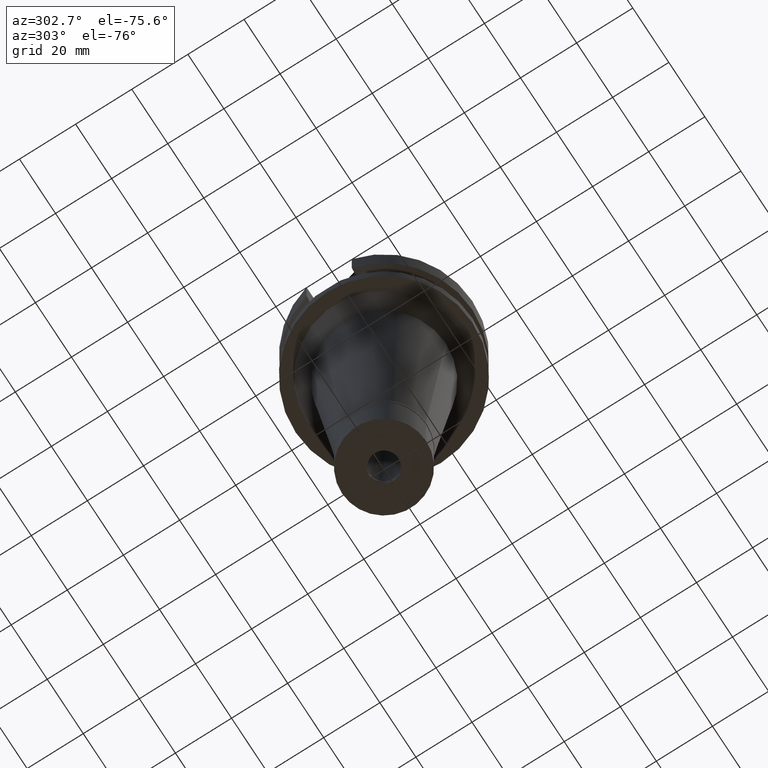
[diagram: clean part render]
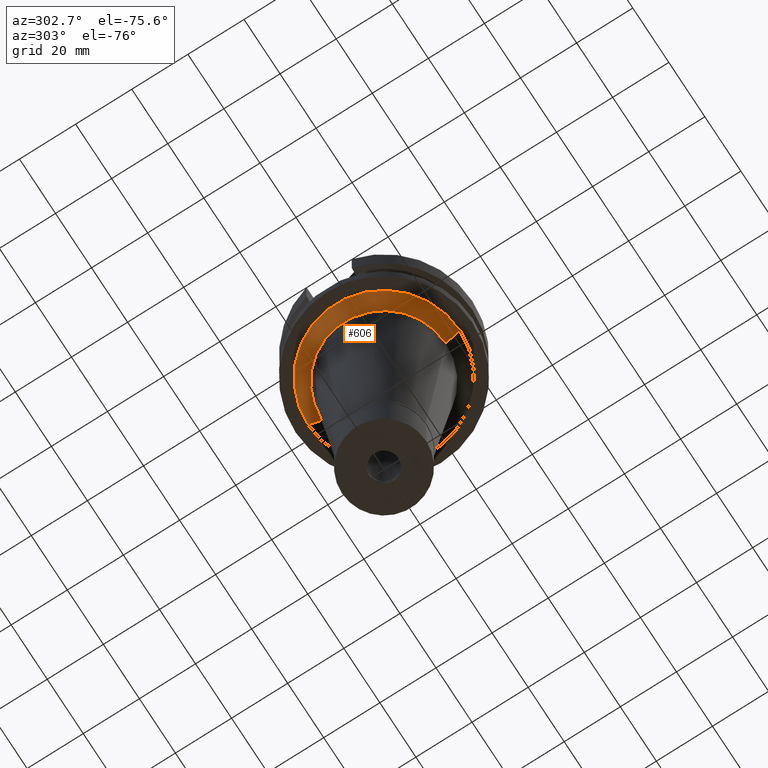
[diagram: same view with one face highlighted and labeled with its STEP entity id]
A machine part, auxiliary view. The second image highlights one B-rep face of the part: STEP entity #606.
In plain terms, the highlighted conical surface has half-angle 45 deg.
Its self-contained STEP definition (entity closure, byte-faithful):
#24 = CONICAL_SURFACE ( 'NONE', #190, 24.51659081478000246, 0.7853981633972997312 ) ;
#86 = EDGE_CURVE ( 'NONE', #2668, #2775, #1071, .T. ) ;
#102 = CARTESIAN_POINT ( 'NONE',  ( 0.0000000000000000000, 0.0000000000000000000, -27.00000000000000000 ) ) ;
#151 = DIRECTION ( 'NONE',  ( 0.0000000000000000000, 0.0000000000000000000, -1.000000000000000000 ) ) ;
#190 = AXIS2_PLACEMENT_3D ( 'NONE', #991, #1967, #2451 ) ;
#250 = CARTESIAN_POINT ( 'NONE',  ( 0.0000000000000000000, -22.01659081477999891, -32.00000000000000000 ) ) ;
#391 = CARTESIAN_POINT ( 'NONE',  ( 0.0000000000000000000, 27.01659081477999891, -27.00000000000000000 ) ) ;
#421 = CARTESIAN_POINT ( 'NONE',  ( 0.0000000000000000000, -27.01659081477999891, -27.00000000000000000 ) ) ;
#539 = FACE_OUTER_BOUND ( 'NONE', #2637, .T. ) ;
#549 = VECTOR ( 'NONE', #2961, 1000.000000000000000 ) ;
#592 = VECTOR ( 'NONE', #3002, 1000.000000000000000 ) ;
#606 = ADVANCED_FACE ( 'NONE', ( #539 ), #24, .T. ) ;
#644 = DIRECTION ( 'NONE',  ( 0.0000000000000000000, -1.000000000000000000, 0.0000000000000000000 ) ) ;
#743 = CARTESIAN_POINT ( 'NONE',  ( 0.0000000000000000000, 27.01659081477999891, -27.00000000000000000 ) ) ;
#981 = AXIS2_PLACEMENT_3D ( 'NONE', #102, #151, #644 ) ;
#988 = AXIS2_PLACEMENT_3D ( 'NONE', #1132, #2606, #1732 ) ;
#991 = CARTESIAN_POINT ( 'NONE',  ( 0.0000000000000000000, 0.0000000000000000000, -29.50000000000000000 ) ) ;
#1071 = LINE ( 'NONE', #1330, #549 ) ;
#1132 = CARTESIAN_POINT ( 'NONE',  ( 0.0000000000000000000, 0.0000000000000000000, -32.00000000000000000 ) ) ;
#1260 = VERTEX_POINT ( 'NONE', #743 ) ;
#1293 = ORIENTED_EDGE ( 'NONE', *, *, #86, .F. ) ;
#1330 = CARTESIAN_POINT ( 'NONE',  ( 0.0000000000000000000, -27.01659081477999891, -27.00000000000000000 ) ) ;
#1341 = EDGE_CURVE ( 'NONE', #2668, #1260, #2762, .T. ) ;
#1447 = CIRCLE ( 'NONE', #988, 22.01659081477999891 ) ;
#1512 = EDGE_CURVE ( 'NONE', #1260, #2802, #1551, .T. ) ;
#1551 = LINE ( 'NONE', #391, #592 ) ;
#1626 = EDGE_CURVE ( 'NONE', #2775, #2802, #1447, .T. ) ;
#1732 = DIRECTION ( 'NONE',  ( 0.0000000000000000000, -1.000000000000000000, 0.0000000000000000000 ) ) ;
#1967 = DIRECTION ( 'NONE',  ( 0.0000000000000000000, 0.0000000000000000000, 1.000000000000000000 ) ) ;
#2451 = DIRECTION ( 'NONE',  ( 0.0000000000000000000, 1.000000000000000000, 0.0000000000000000000 ) ) ;
#2606 = DIRECTION ( 'NONE',  ( 0.0000000000000000000, 0.0000000000000000000, -1.000000000000000000 ) ) ;
#2637 = EDGE_LOOP ( 'NONE', ( #2746, #1293, #3139, #2808 ) ) ;
#2668 = VERTEX_POINT ( 'NONE', #421 ) ;
#2746 = ORIENTED_EDGE ( 'NONE', *, *, #1626, .F. ) ;
#2762 = CIRCLE ( 'NONE', #981, 27.01659081477999891 ) ;
#2775 = VERTEX_POINT ( 'NONE', #250 ) ;
#2802 = VERTEX_POINT ( 'NONE', #3136 ) ;
#2808 = ORIENTED_EDGE ( 'NONE', *, *, #1512, .T. ) ;
#2961 = DIRECTION ( 'NONE',  ( 0.0000000000000000000, 0.7071067811865969777, -0.7071067811864980568 ) ) ;
#3002 = DIRECTION ( 'NONE',  ( 0.0000000000000000000, -0.7071067811865969777, -0.7071067811864980568 ) ) ;
#3136 = CARTESIAN_POINT ( 'NONE',  ( 0.0000000000000000000, 22.01659081477999891, -32.00000000000000000 ) ) ;
#3139 = ORIENTED_EDGE ( 'NONE', *, *, #1341, .T. ) ;